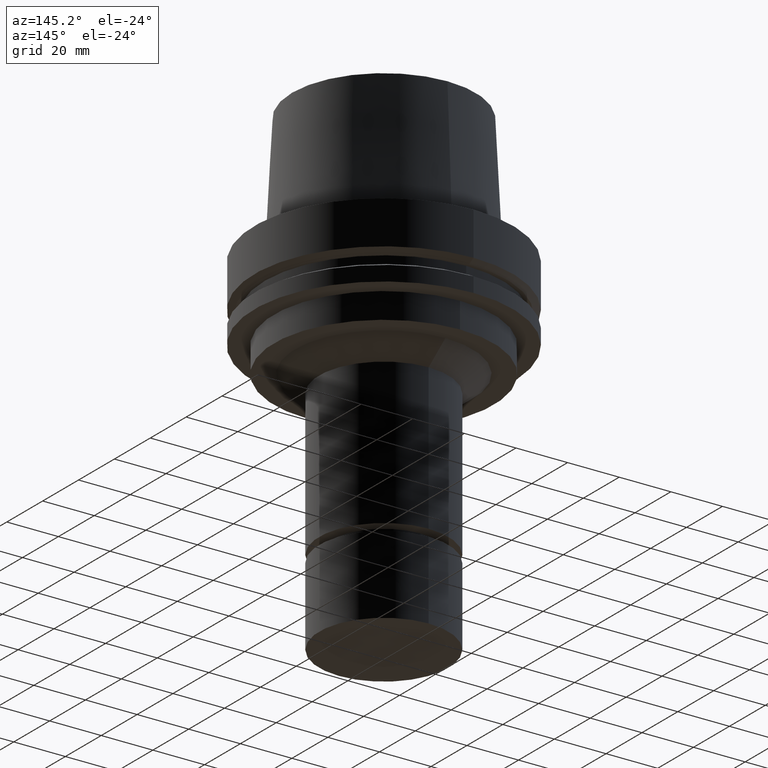
[diagram: clean part render]
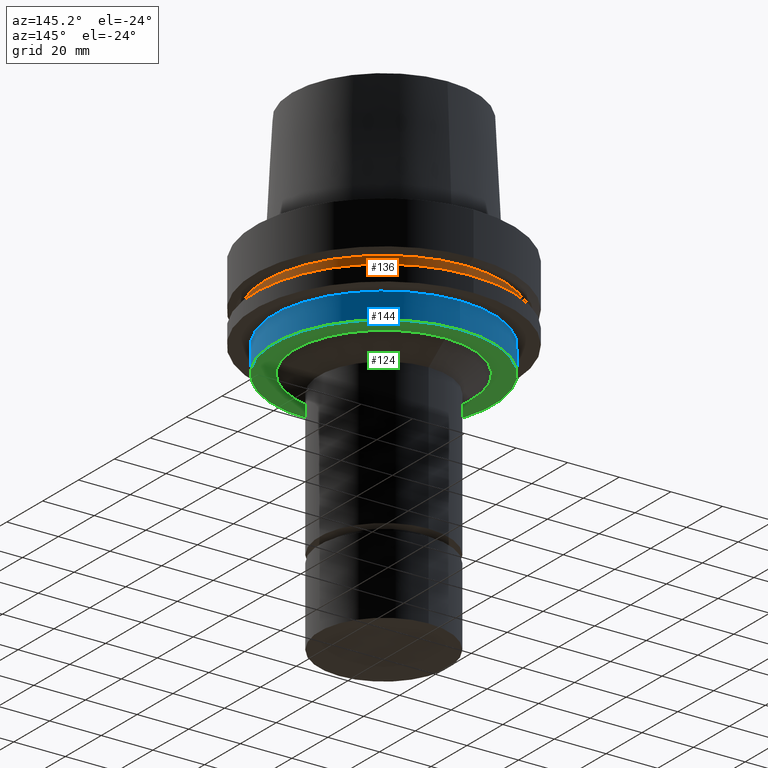
[diagram: same view with three faces highlighted in distinct colors, each labeled with its STEP entity id]
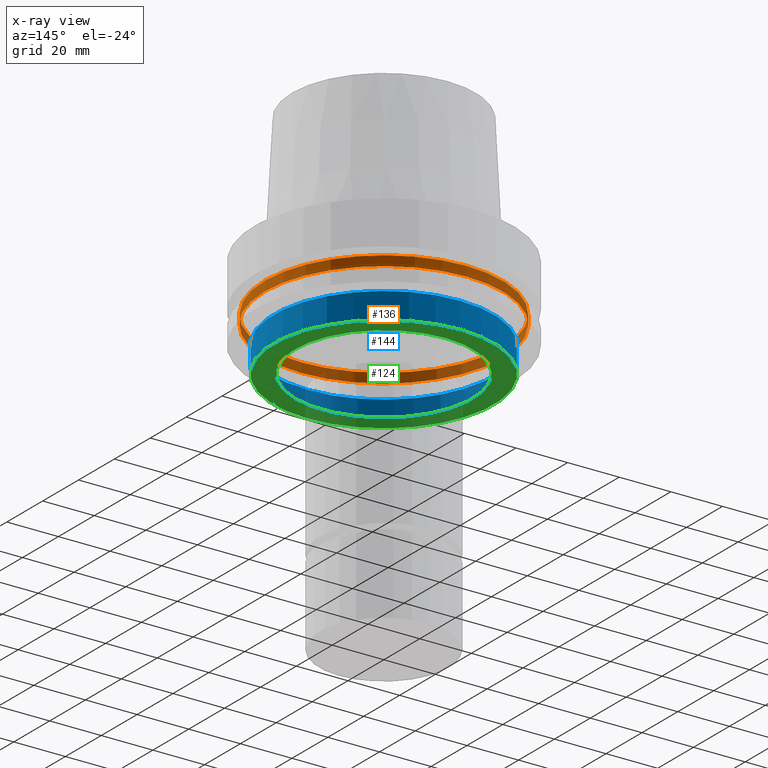
[diagram: x-ray of the same camera — body ghosted, the three highlighted faces saturated]
A machine part, auxiliary view with three faces highlighted in distinct colors.
The next image is the same camera in x-ray (body ghosted, the three faces saturated) — at least one of them is partly hidden behind the body in this view.
Their STEP definitions:

[orange] entity #136 — the highlighted cylindrical surface (bore or boss wall) has radius 46 mm, axis along (0, 0, -1).
#136=ADVANCED_FACE('Unnamed[1]',(#305,#306),#307,.T.);
#154=EDGE_CURVE('Unnamed[1]',#335,#335,#336,.T.);
#199=EDGE_CURVE('Unnamed[1]',#404,#404,#405,.T.);
#305=FACE_BOUND('',#526,.T.);
#306=FACE_BOUND('',#527,.T.);
#307=CYLINDRICAL_SURFACE('',#528,46.0);
#335=VERTEX_POINT('',#563);
#336=CIRCLE('',#564,46.0);
#404=VERTEX_POINT('',#648);
#405=CIRCLE('',#649,46.0);
#526=EDGE_LOOP('',(#745));
#527=EDGE_LOOP('',(#746));
#528=AXIS2_PLACEMENT_3D('',#747,#748,#749);
#563=CARTESIAN_POINT('',(1.10983616172729E-015,46.0,-18.125));
#564=AXIS2_PLACEMENT_3D('',#780,#781,#782);
#648=CARTESIAN_POINT('',(1.33945743656742E-015,46.0,-21.875));
#649=AXIS2_PLACEMENT_3D('',#857,#858,#859);
#745=ORIENTED_EDGE('',*,*,#199,.F.);
#746=ORIENTED_EDGE('',*,*,#154,.T.);
#747=CARTESIAN_POINT('',(1.22464679914735E-015,2.44929359829471E-015,-20.0));
#748=DIRECTION('',(6.12323399573677E-017,1.22464679914716E-016,-1.0));
#749=DIRECTION('',(-1.23259516440783E-032,1.0,1.22464679914716E-016));
#780=CARTESIAN_POINT('',(1.10983616172729E-015,2.21967232345458E-015,-18.125));
#781=DIRECTION('',(6.12323399573677E-017,1.22464679914716E-016,-1.0));
#782=DIRECTION('',(-1.23259516440783E-032,1.0,1.22464679914716E-016));
#857=CARTESIAN_POINT('',(1.33945743656742E-015,2.67891487313484E-015,-21.875));
#858=DIRECTION('',(6.12323399573677E-017,1.22464679914716E-016,-1.0));
#859=DIRECTION('',(-1.23259516440783E-032,1.0,1.22464679914716E-016));

[blue] entity #144 — the highlighted cylindrical surface (bore or boss wall) has radius 42.5 mm, axis along (0, 0, -1).
#118=EDGE_CURVE('Unnamed[1]',#277,#277,#278,.T.);
#144=ADVANCED_FACE('Unnamed[1]',(#318,#319),#320,.T.);
#189=EDGE_CURVE('Unnamed[1]',#389,#389,#390,.T.);
#277=VERTEX_POINT('',#491);
#278=CIRCLE('',#492,42.5);
#318=FACE_BOUND('',#542,.T.);
#319=FACE_BOUND('',#543,.T.);
#320=CYLINDRICAL_SURFACE('',#544,42.5);
#389=VERTEX_POINT('',#629);
#390=CIRCLE('',#630,42.5);
#491=CARTESIAN_POINT('',(1.77573785876366E-015,42.5,-29.0));
#492=AXIS2_PLACEMENT_3D('',#714,#715,#716);
#542=EDGE_LOOP('',(#760));
#543=EDGE_LOOP('',(#761));
#544=AXIS2_PLACEMENT_3D('',#762,#763,#764);
#629=CARTESIAN_POINT('',(2.38806125833734E-015,42.5,-39.0));
#630=AXIS2_PLACEMENT_3D('',#840,#841,#842);
#714=CARTESIAN_POINT('',(1.77573785876366E-015,3.55147571752733E-015,-29.0));
#715=DIRECTION('',(6.12323399573677E-017,1.22464679914763E-016,-1.0));
#716=DIRECTION('',(-1.23259516440783E-032,1.0,1.22464679914763E-016));
#760=ORIENTED_EDGE('',*,*,#189,.F.);
#761=ORIENTED_EDGE('',*,*,#118,.T.);
#762=CARTESIAN_POINT('',(2.0818995585505E-015,4.163799117101E-015,-34.0));
#763=DIRECTION('',(6.12323399573677E-017,1.22464679914763E-016,-1.0));
#764=DIRECTION('',(-1.23259516440783E-032,1.0,1.22464679914763E-016));
#840=CARTESIAN_POINT('',(2.38806125833734E-015,4.77612251667468E-015,-39.0));
#841=DIRECTION('',(6.12323399573677E-017,1.22464679914763E-016,-1.0));
#842=DIRECTION('',(-1.23259516440783E-032,1.0,1.22464679914763E-016));

[green] entity #124 — the highlighted planar face has unit normal (0, 0, -1).
#107=EDGE_CURVE('Unnamed[1]',#262,#262,#263,.T.);
#124=ADVANCED_FACE('Unnamed[1]',(#286,#287),#288,.T.);
#189=EDGE_CURVE('Unnamed[1]',#389,#389,#390,.T.);
#262=VERTEX_POINT('',#472);
#263=CIRCLE('',#473,34.3193294456171);
#286=FACE_BOUND('',#502,.T.);
#287=FACE_OUTER_BOUND('',#503,.T.);
#288=PLANE('',#504);
#389=VERTEX_POINT('',#629);
#390=CIRCLE('',#630,42.5);
#472=CARTESIAN_POINT('',(2.38806125833734E-015,34.3193294456171,-39.0));
#473=AXIS2_PLACEMENT_3D('',#701,#702,#703);
#502=EDGE_LOOP('',(#724));
#503=EDGE_LOOP('',(#725));
#504=AXIS2_PLACEMENT_3D('',#726,#727,#728);
#629=CARTESIAN_POINT('',(2.38806125833734E-015,42.5,-39.0));
#630=AXIS2_PLACEMENT_3D('',#840,#841,#842);
#701=CARTESIAN_POINT('',(2.38806125833734E-015,4.77612251667468E-015,-39.0));
#702=DIRECTION('',(6.12323399573677E-017,1.22464679914712E-016,-1.0));
#703=DIRECTION('',(-1.23259516440772E-032,1.0,1.22464679914712E-016));
#724=ORIENTED_EDGE('',*,*,#107,.F.);
#725=ORIENTED_EDGE('',*,*,#189,.T.);
#726=CARTESIAN_POINT('',(2.38806125833734E-015,38.4096647228086,-39.0));
#727=DIRECTION('',(6.12323399573677E-017,1.22464679914735E-016,-1.0));
#728=DIRECTION('',(-1.23259516440783E-032,1.0,1.22464679914735E-016));
#840=CARTESIAN_POINT('',(2.38806125833734E-015,4.77612251667468E-015,-39.0));
#841=DIRECTION('',(6.12323399573677E-017,1.22464679914763E-016,-1.0));
#842=DIRECTION('',(-1.23259516440783E-032,1.0,1.22464679914763E-016));